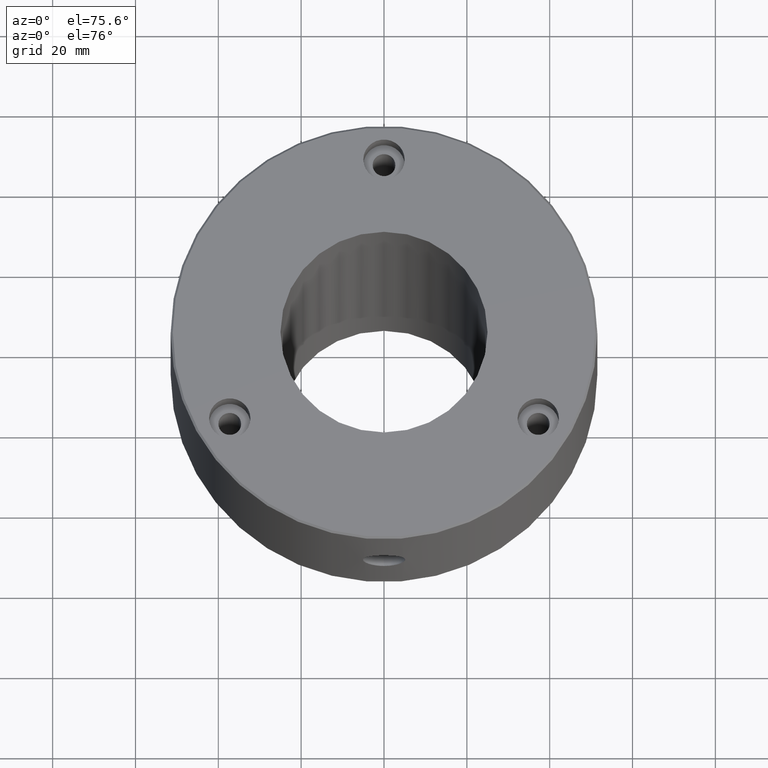
[diagram: clean part render]
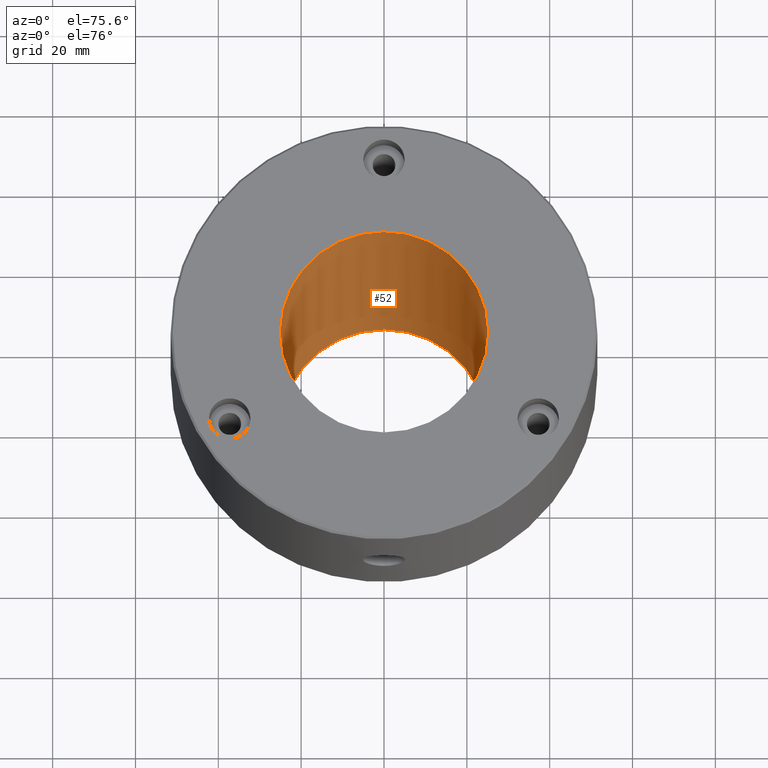
[diagram: same view with one face highlighted and labeled with its STEP entity id]
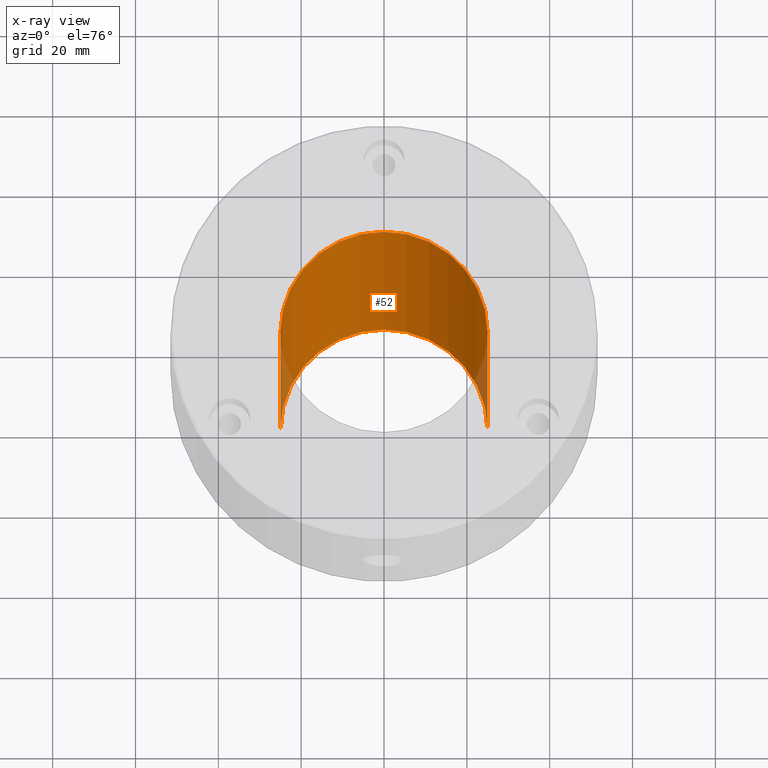
[diagram: x-ray of the same camera — body ghosted, the highlighted face saturated]
A machine part, auxiliary view. The second image highlights one B-rep face of the part: STEP entity #52.
The next image is the same camera in x-ray: the body ghosted, the highlighted face saturated — about 4% of this face is hidden behind the body in this view.
In plain terms, the highlighted cylindrical surface (partial cylindrical patch) has radius 25 mm, axis along (-0, -0, -1).
Its self-contained STEP definition (entity closure, byte-faithful):
#18 = EDGE_CURVE ( 'NONE', #1164, #898, #1170, .T. ) ;
#44 = CYLINDRICAL_SURFACE ( 'NONE', #214, 25.00000000000000000 ) ;
#52 = ADVANCED_FACE ( 'NONE', ( #545 ), #44, .F. ) ;
#114 = DIRECTION ( 'NONE',  ( -0.000000000000000000, -0.000000000000000000, -1.000000000000000000 ) ) ;
#138 = CARTESIAN_POINT ( 'NONE',  ( 0.000000000000000000, 0.000000000000000000, 0.000000000000000000 ) ) ;
#160 = DIRECTION ( 'NONE',  ( 0.000000000000000000, 0.000000000000000000, -1.000000000000000000 ) ) ;
#211 = LINE ( 'NONE', #984, #704 ) ;
#214 = AXIS2_PLACEMENT_3D ( 'NONE', #138, #828, #922 ) ;
#264 = CARTESIAN_POINT ( 'NONE',  ( 0.000000000000000000, 0.000000000000000000, -95.00000000000000000 ) ) ;
#285 = DIRECTION ( 'NONE',  ( 0.000000000000000000, 0.000000000000000000, -1.000000000000000000 ) ) ;
#293 = EDGE_CURVE ( 'NONE', #969, #1164, #484, .T. ) ;
#306 = DIRECTION ( 'NONE',  ( -0.000000000000000000, -0.000000000000000000, -1.000000000000000000 ) ) ;
#425 = CARTESIAN_POINT ( 'NONE',  ( 25.00000000000000000, 3.061616997868383043E-15, 0.000000000000000000 ) ) ;
#454 = ORIENTED_EDGE ( 'NONE', *, *, #293, .F. ) ;
#484 = CIRCLE ( 'NONE', #1058, 25.00000000000000000 ) ;
#526 = VECTOR ( 'NONE', #306, 1000.000000000000000 ) ;
#534 = DIRECTION ( 'NONE',  ( -1.000000000000000000, 0.000000000000000000, 0.000000000000000000 ) ) ;
#545 = FACE_OUTER_BOUND ( 'NONE', #991, .T. ) ;
#556 = CARTESIAN_POINT ( 'NONE',  ( -25.00000000000000000, 0.000000000000000000, 0.000000000000000000 ) ) ;
#596 = DIRECTION ( 'NONE',  ( -1.000000000000000000, 0.000000000000000000, 0.000000000000000000 ) ) ;
#618 = EDGE_CURVE ( 'NONE', #1244, #898, #1021, .T. ) ;
#704 = VECTOR ( 'NONE', #114, 1000.000000000000000 ) ;
#706 = CARTESIAN_POINT ( 'NONE',  ( -25.00000000000000000, 0.000000000000000000, -95.00000000000000000 ) ) ;
#797 = ORIENTED_EDGE ( 'NONE', *, *, #18, .F. ) ;
#803 = AXIS2_PLACEMENT_3D ( 'NONE', #264, #160, #534 ) ;
#828 = DIRECTION ( 'NONE',  ( -0.000000000000000000, -0.000000000000000000, -1.000000000000000000 ) ) ;
#831 = ORIENTED_EDGE ( 'NONE', *, *, #618, .T. ) ;
#898 = VERTEX_POINT ( 'NONE', #1074 ) ;
#908 = EDGE_CURVE ( 'NONE', #969, #1244, #211, .T. ) ;
#922 = DIRECTION ( 'NONE',  ( -1.000000000000000000, 0.000000000000000000, 0.000000000000000000 ) ) ;
#947 = CARTESIAN_POINT ( 'NONE',  ( 25.00000000000000000, 3.061616997868383043E-15, 0.000000000000000000 ) ) ;
#969 = VERTEX_POINT ( 'NONE', #556 ) ;
#984 = CARTESIAN_POINT ( 'NONE',  ( -25.00000000000000000, 0.000000000000000000, 0.000000000000000000 ) ) ;
#991 = EDGE_LOOP ( 'NONE', ( #797, #454, #1076, #831 ) ) ;
#1021 = CIRCLE ( 'NONE', #803, 25.00000000000000000 ) ;
#1058 = AXIS2_PLACEMENT_3D ( 'NONE', #1137, #285, #596 ) ;
#1074 = CARTESIAN_POINT ( 'NONE',  ( 25.00000000000000000, 3.061616997868383043E-15, -95.00000000000000000 ) ) ;
#1076 = ORIENTED_EDGE ( 'NONE', *, *, #908, .T. ) ;
#1137 = CARTESIAN_POINT ( 'NONE',  ( 0.000000000000000000, 0.000000000000000000, 0.000000000000000000 ) ) ;
#1164 = VERTEX_POINT ( 'NONE', #947 ) ;
#1170 = LINE ( 'NONE', #425, #526 ) ;
#1244 = VERTEX_POINT ( 'NONE', #706 ) ;